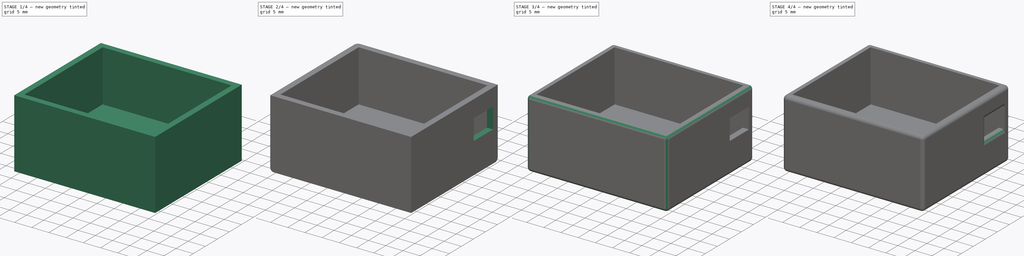
[diagram: build sequence overview — one tinted view per stage of 4, left to right]
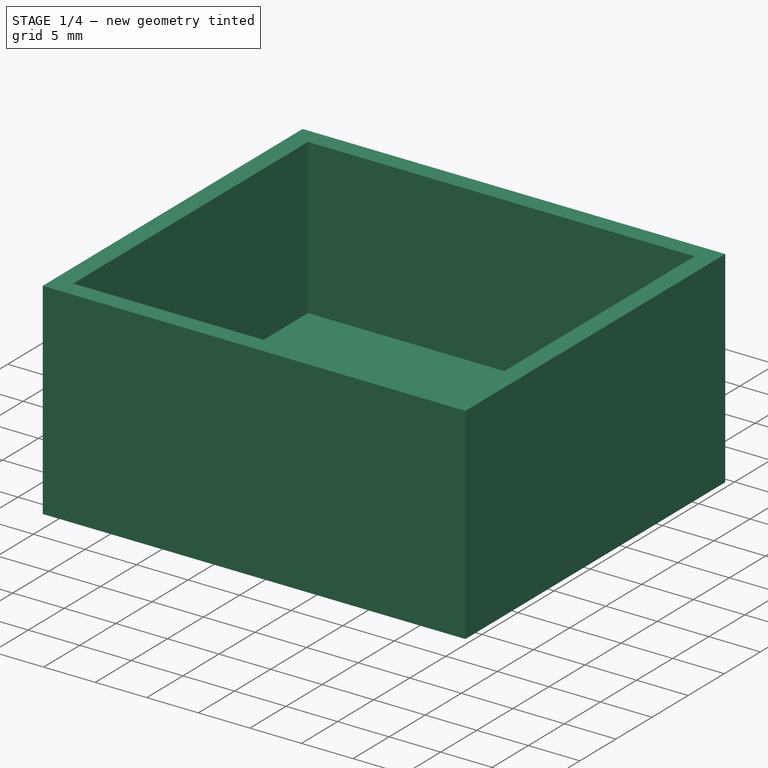
[diagram: stage 1 of 4 — iso view after this stage's code; geometry added in this stage tinted green]
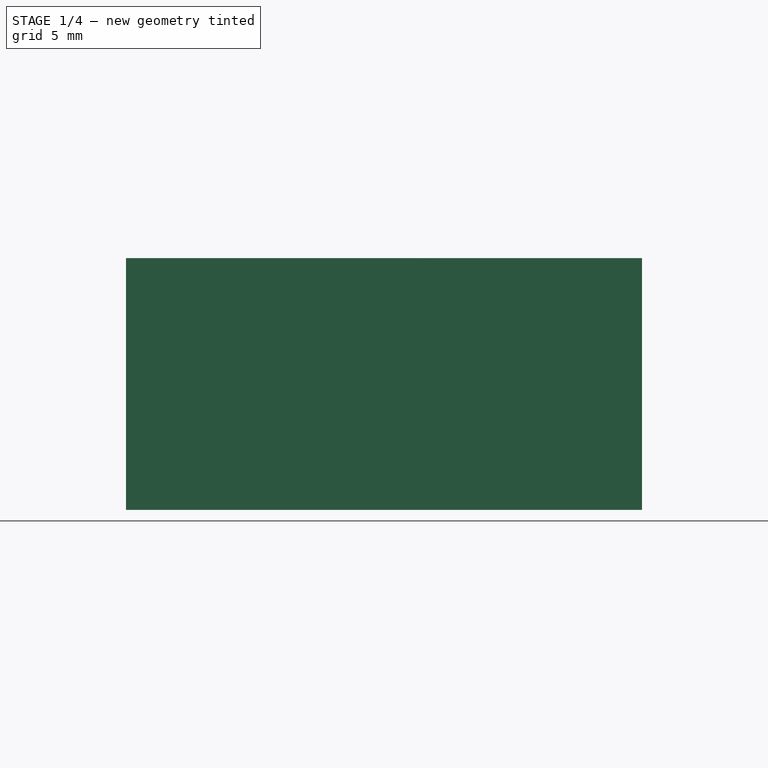
[diagram: stage 1 of 4 — front view after this stage's code; geometry added in this stage tinted green]
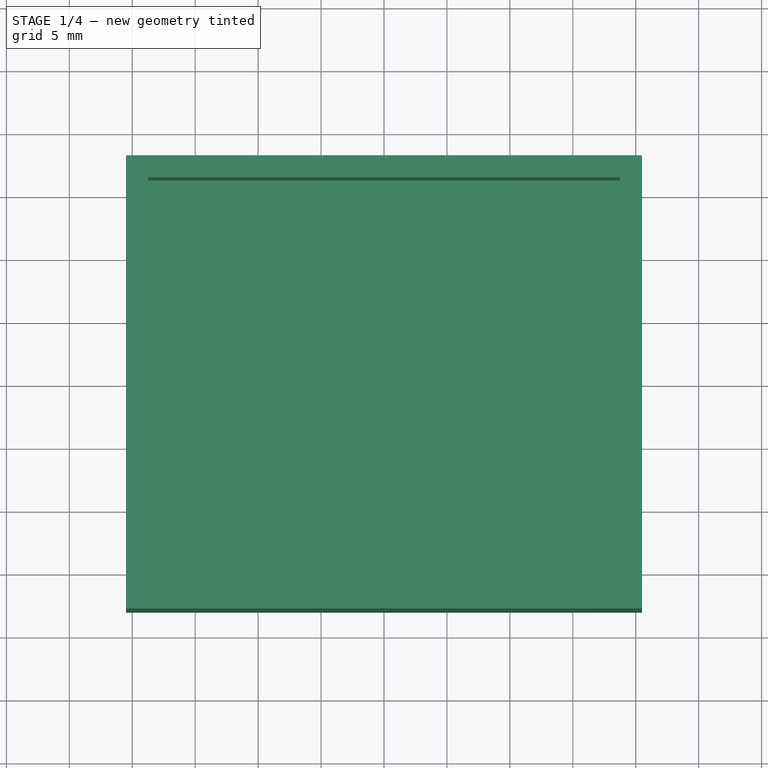
[diagram: stage 1 of 4 — top view after this stage's code; geometry added in this stage tinted green]
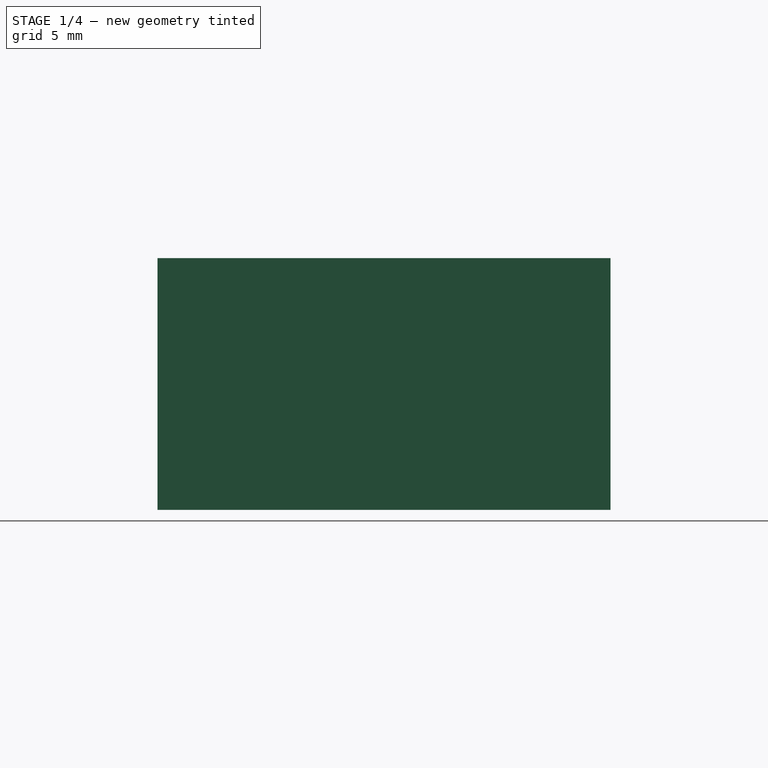
[diagram: stage 1 of 4 — right view after this stage's code; geometry added in this stage tinted green]
FCSTD DOCUMENT  (FreeCAD 0.18R16146 (Git))
Label: SensorCase_2
License: All rights reserved
LicenseURL: http://en.wikipedia.org/wiki/All_rights_reserved
objects: PartDesign::Fillet×8, Sketcher::SketchObject×4, Drawing::FeatureViewPython×4, PartDesign::Pocket×3, PartDesign::Body×2, Drawing::FeatureViewPart×2, PartDesign::Pad×1, Drawing::FeaturePage×1
note: 22 computed .brp shape members not serialized (recipe doc carries the construction recipe); baked Part::Feature solids carry a one-line shape summary decoded from their .brp

FEATURE [PartDesign::Body] Body
  Origin = -> Origin
FEATURE [Sketcher::SketchObject] Sketch
  MapMode = 5
  Support = -> [XY_Plane001]
  sketch-geometry (4):
    g0: LineSegment StartX=-20.5 StartY=18 StartZ=0 EndX=20.5 EndY=18 EndZ=0
    g1: LineSegment StartX=20.5 StartY=18 StartZ=0 EndX=20.5 EndY=-18 EndZ=0
    g2: LineSegment StartX=20.5 StartY=-18 StartZ=0 EndX=-20.5 EndY=-18 EndZ=0
    g3: LineSegment StartX=-20.5 StartY=-18 StartZ=0 EndX=-20.5 EndY=18 EndZ=0
  constraints (12):
    c: Coincident(g0,g1)
    c: Coincident(g1,g2)
    c: Coincident(g2,g3)
    c: Coincident(g3,g0)
    c: Horizontal(g0)
    c: Horizontal(g2)
    c: Vertical(g1)
    c: Vertical(g3)
    c: Distance(g0) = 41
    c: Distance(g1) = 36
    c: Distance(g-1,g0) = 18
    c: Distance(g-1,g1) = 20.5
FEATURE [PartDesign::Pad] Pad
  Length = 20
  Length2 = 100
  Profile = -> Sketch
  Type = 0
FEATURE [Sketcher::SketchObject] Sketch001
  MapMode = 5
  Placement = pos=(0,0,20) rot=(0,0,1;0rad)
  Support = -> [Pad]
  sketch-geometry (4):
    g0: LineSegment StartX=-18.75 StartY=16.25 StartZ=0 EndX=18.75 EndY=16.25 EndZ=0
    g1: LineSegment StartX=18.75 StartY=16.25 StartZ=0 EndX=18.75 EndY=-16.25 EndZ=0
    g2: LineSegment StartX=18.75 StartY=-16.25 StartZ=0 EndX=-18.75 EndY=-16.25 EndZ=0
    g3: LineSegment StartX=-18.75 StartY=-16.25 StartZ=0 EndX=-18.75 EndY=16.25 EndZ=0
  constraints (12):
    c: Coincident(g0,g1)
    c: Coincident(g1,g2)
    c: Coincident(g2,g3)
    c: Coincident(g3,g0)
    c: Horizontal(g0)
    c: Horizontal(g2)
    c: Vertical(g1)
    c: Vertical(g3)
    c: Distance(g0) = 37.5
    c: Distance(g1) = 32.5
    c: Distance(g-1,g0) = 16.25
    c: Distance(g-1,g1) = 18.75
FEATURE [PartDesign::Pocket] Pocket
  BaseFeature = -> Pad
  Length = 15
  Length2 = 100
  Profile = -> Sketch001
  Type = 0
FEATURE [Sketcher::SketchObject] Sketch002
  MapMode = 5
  Placement = pos=(0,0,0) rot=(1,0,0;3.14159rad)
  Support = -> [Pocket]
  sketch-geometry (4):
    g0: LineSegment StartX=-18.75 StartY=16.25 StartZ=0 EndX=18.75 EndY=16.25 EndZ=0
    g1: LineSegment StartX=18.75 StartY=16.25 StartZ=0 EndX=18.75 EndY=-16.25 EndZ=0
    g2: LineSegment StartX=18.75 StartY=-16.25 StartZ=0 EndX=-18.75 EndY=-16.25 EndZ=0
    g3: LineSegment StartX=-18.75 StartY=-16.25 StartZ=0 EndX=-18.75 EndY=16.25 EndZ=0
  constraints (12):
    c: Coincident(g0,g1)
    c: Coincident(g1,g2)
    c: Coincident(g2,g3)
    c: Coincident(g3,g0)
    c: Horizontal(g0)
    c: Horizontal(g2)
    c: Vertical(g1)
    c: Vertical(g3)
    c: Distance(g0) = 37.5
    c: Distance(g3) = 32.5
    c: Distance(g-1,g0) = 16.25
    c: Distance(g-1,g3) = 18.75
FEATURE [PartDesign::Pocket] Pocket001
  BaseFeature = -> Pocket
  Length = 3
  Length2 = 100
  Profile = -> Sketch002
  Type = 0
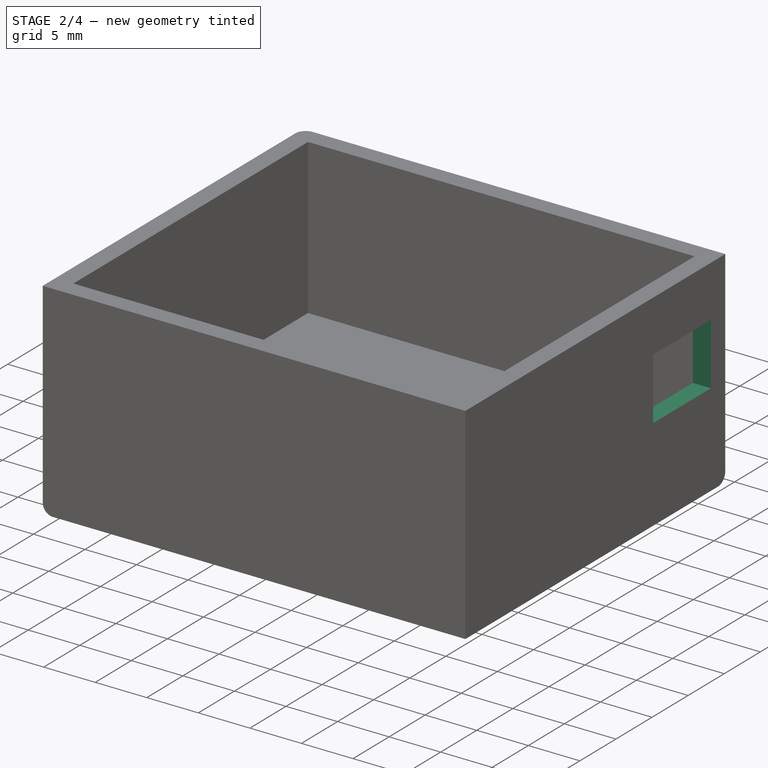
[diagram: stage 2 of 4 — iso view after this stage's code; geometry added in this stage tinted green]
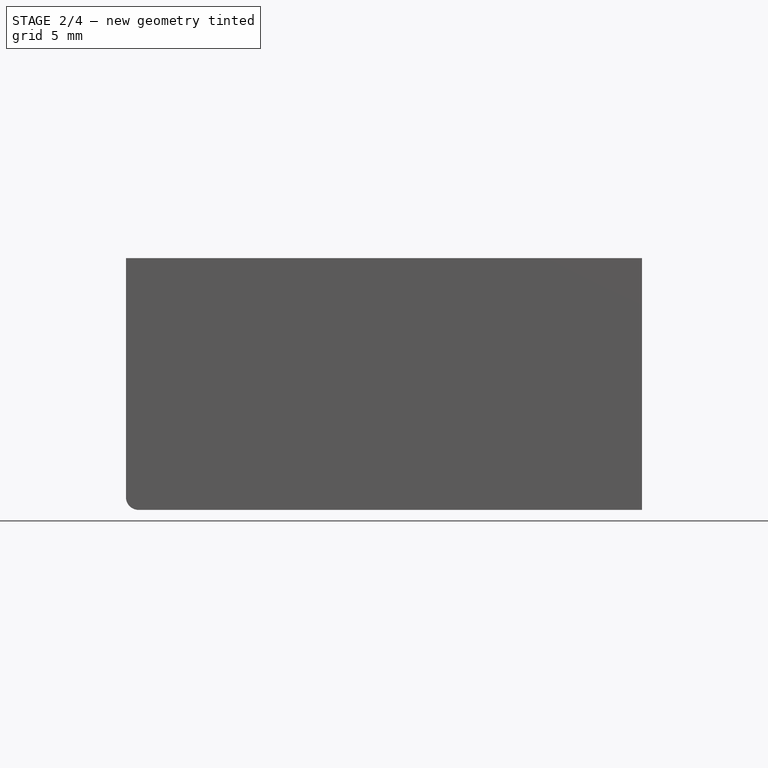
[diagram: stage 2 of 4 — front view after this stage's code; geometry added in this stage tinted green]
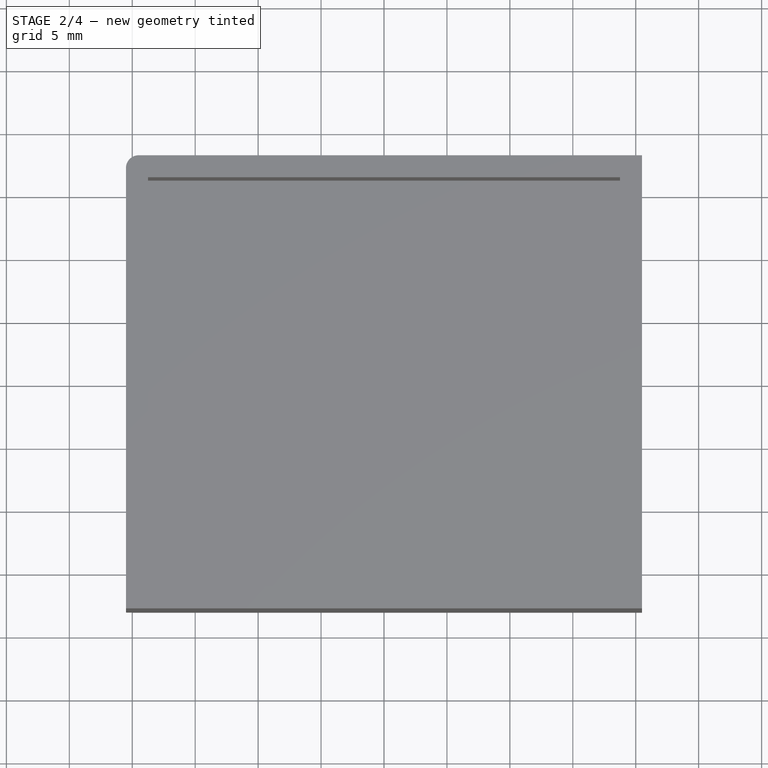
[diagram: stage 2 of 4 — top view after this stage's code; geometry added in this stage tinted green]
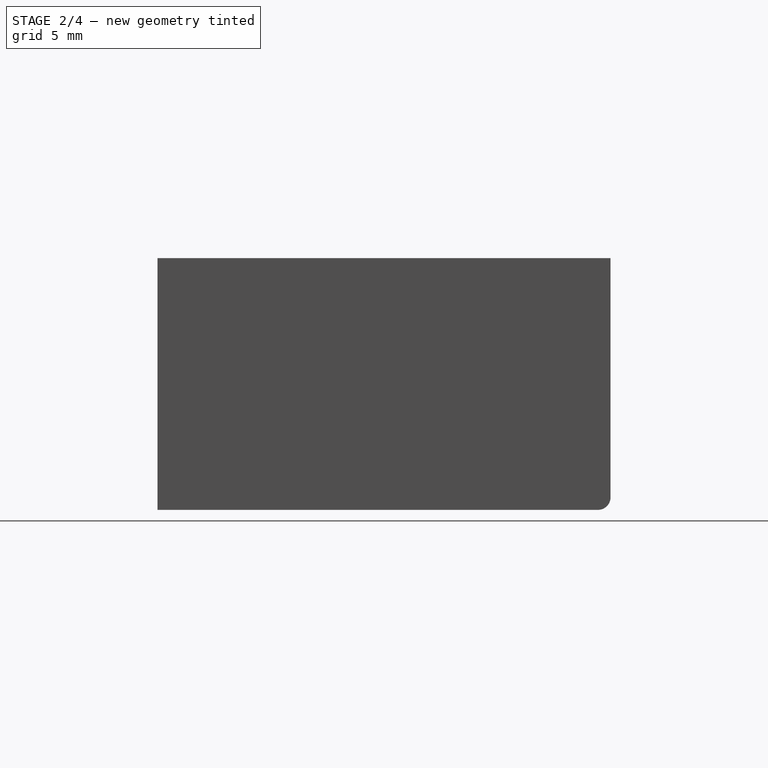
[diagram: stage 2 of 4 — right view after this stage's code; geometry added in this stage tinted green]
FEATURE [Sketcher::SketchObject] Sketch003
  MapMode = 5
  Placement = pos=(20.5,0,0) rot=(0.57735,0.57735,0.57735;2.0944rad)
  Support = -> [Pocket001]
  sketch-geometry (4):
    g0: LineSegment StartX=8 StartY=15 StartZ=0 EndX=16 EndY=15 EndZ=0
    g1: LineSegment StartX=16 StartY=15 StartZ=0 EndX=16 EndY=9 EndZ=0
    g2: LineSegment StartX=16 StartY=9 StartZ=0 EndX=8 EndY=9 EndZ=0
    g3: LineSegment StartX=8 StartY=9 StartZ=0 EndX=8 EndY=15 EndZ=0
  constraints (12):
    c: Coincident(g0,g1)
    c: Coincident(g1,g2)
    c: Coincident(g2,g3)
    c: Coincident(g3,g0)
    c: Horizontal(g0)
    c: Horizontal(g2)
    c: Vertical(g1)
    c: Vertical(g3)
    c: Distance(g0) = 8
    c: Distance(g1) = 6
    c: DistanceY(g-1,g2) = 9
    c: DistanceX(g-1,g2) = 8
FEATURE [PartDesign::Pocket] Pocket002
  BaseFeature = -> Pocket001
  Length = 5
  Length2 = 100
  Profile = -> Sketch003
  Type = 0
FEATURE [PartDesign::Fillet] Fillet
  Base = -> Pocket002 [Edge6]
  BaseFeature = -> Pocket002
  Radius = 1
FEATURE [PartDesign::Fillet] Fillet001
  Base = -> Fillet [Edge4]
  BaseFeature = -> Fillet
  Radius = 1
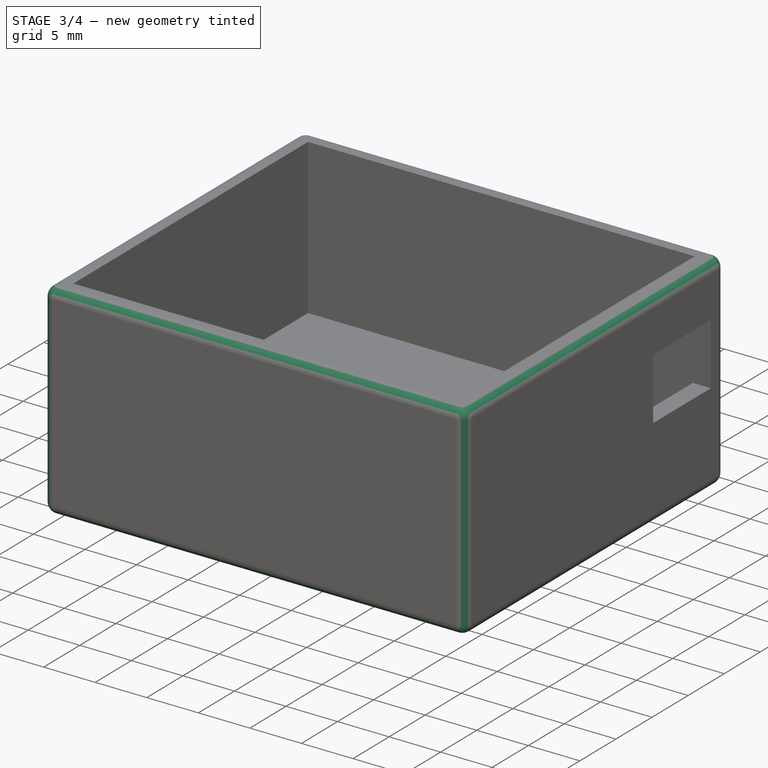
[diagram: stage 3 of 4 — iso view after this stage's code; geometry added in this stage tinted green]
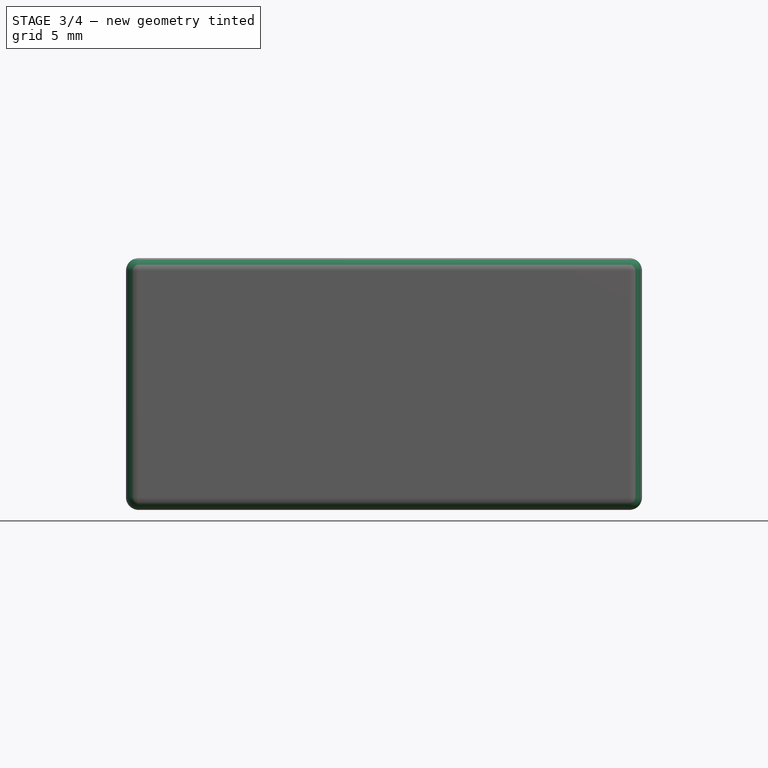
[diagram: stage 3 of 4 — front view after this stage's code; geometry added in this stage tinted green]
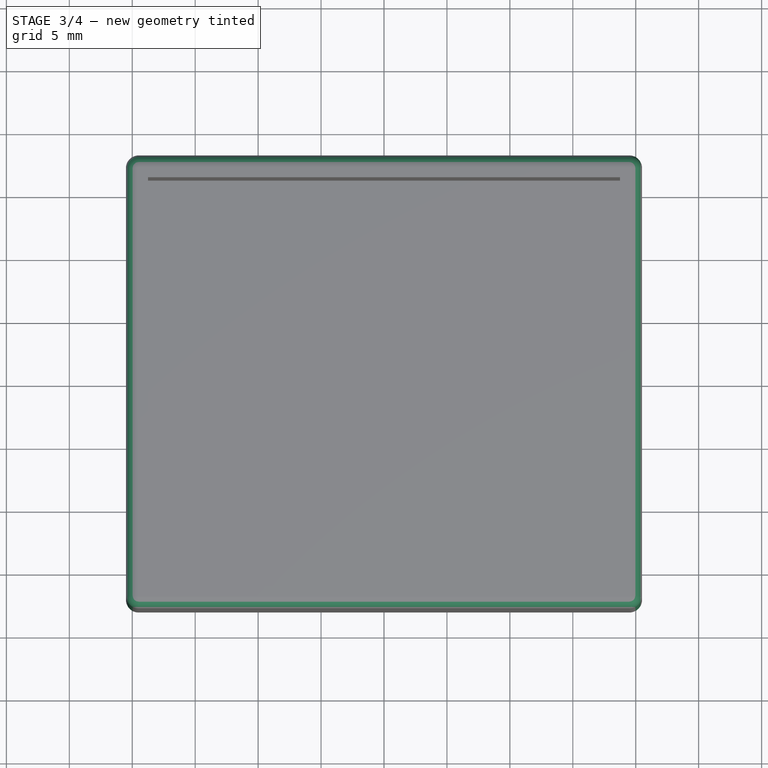
[diagram: stage 3 of 4 — top view after this stage's code; geometry added in this stage tinted green]
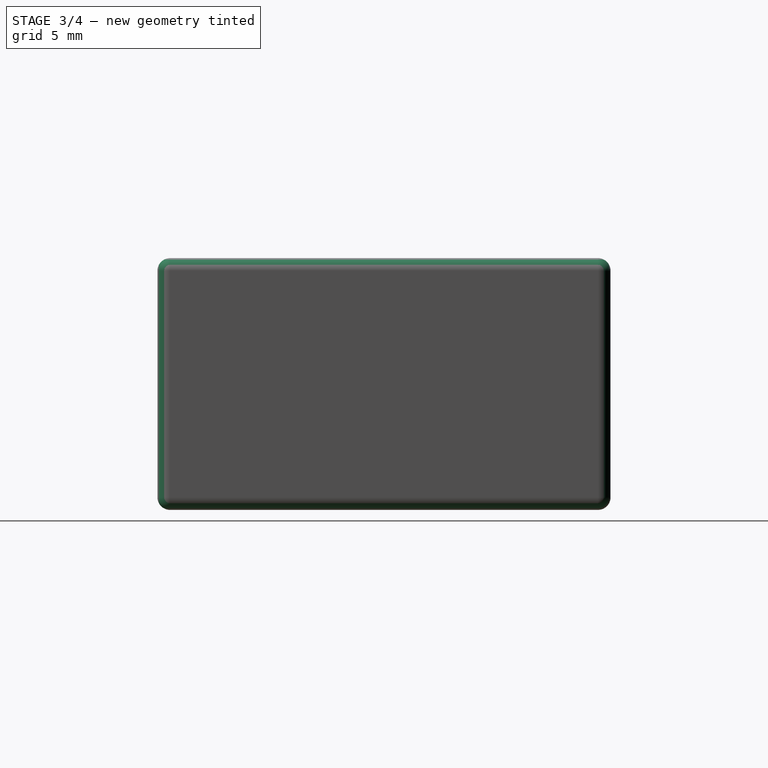
[diagram: stage 3 of 4 — right view after this stage's code; geometry added in this stage tinted green]
FEATURE [PartDesign::Fillet] Fillet002
  Base = -> Fillet001 [Edge16]
  BaseFeature = -> Fillet001
  Radius = 1
FEATURE [PartDesign::Fillet] Fillet003
  Base = -> Fillet002 [Edge29]
  BaseFeature = -> Fillet002
  Radius = 1
FEATURE [PartDesign::Fillet] Fillet004
  Base = -> Fillet003 [Edge8]
  BaseFeature = -> Fillet003
  Radius = 1
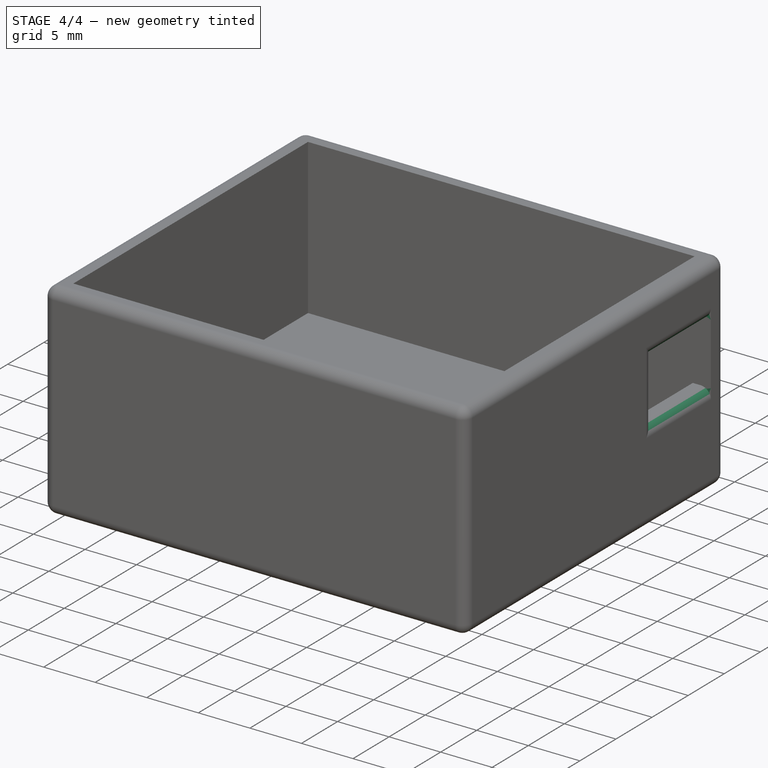
[diagram: stage 4 of 4 — iso view after this stage's code; geometry added in this stage tinted green]
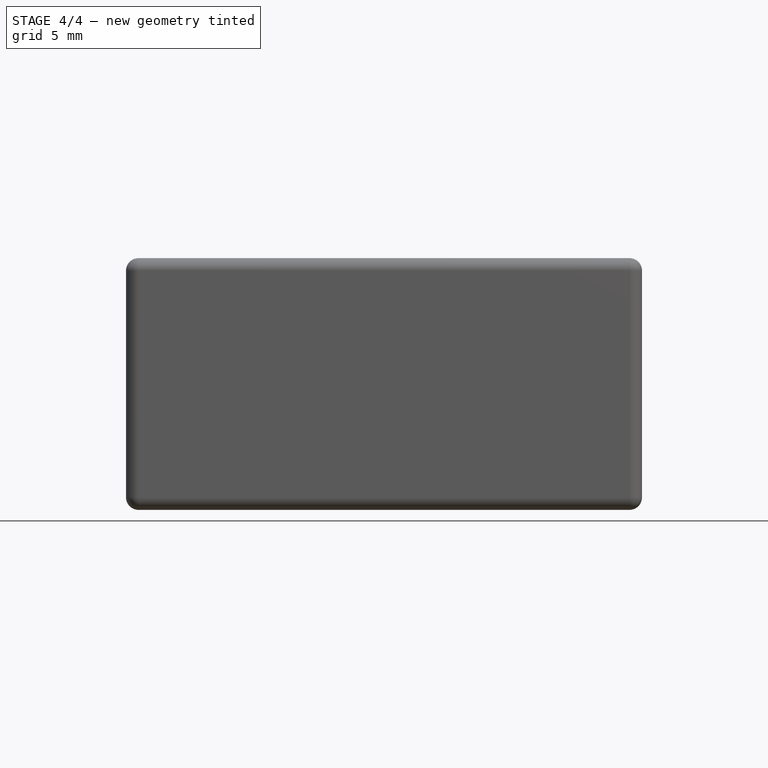
[diagram: stage 4 of 4 — front view after this stage's code; geometry added in this stage tinted green]
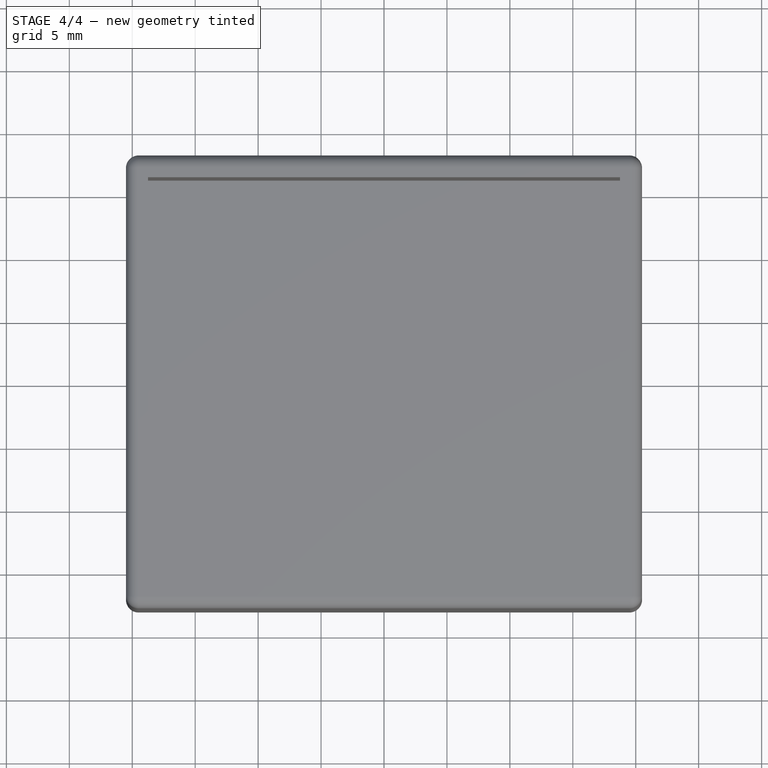
[diagram: stage 4 of 4 — top view after this stage's code; geometry added in this stage tinted green]
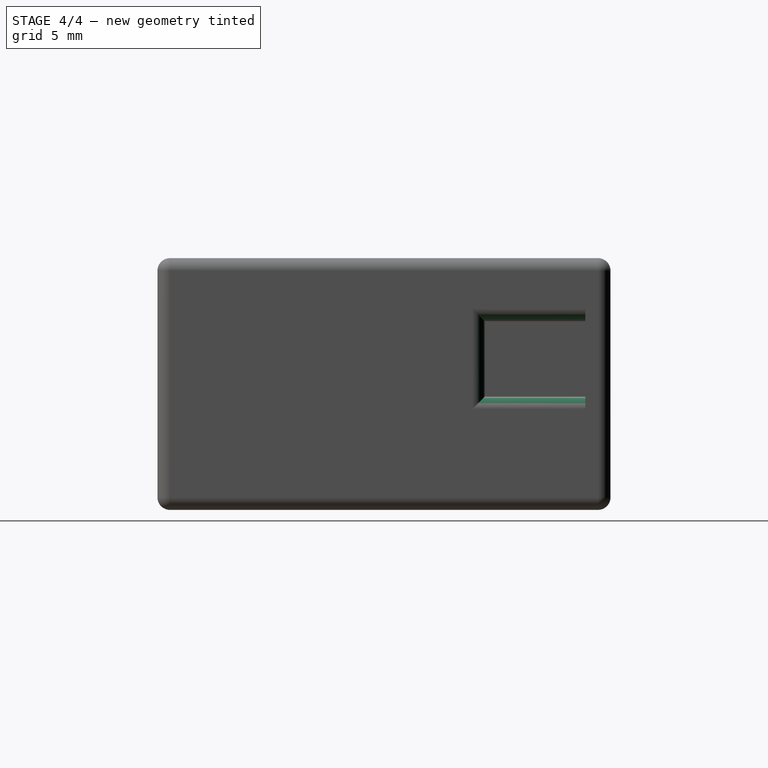
[diagram: stage 4 of 4 — right view after this stage's code; geometry added in this stage tinted green]
FEATURE [PartDesign::Fillet] Fillet005
  Base = -> Fillet004 [Edge54]
  BaseFeature = -> Fillet004
  Radius = 1
FEATURE [PartDesign::Fillet] Fillet006
  Base = -> Fillet005 [Edge6]
  BaseFeature = -> Fillet005
  Radius = 1
FEATURE [PartDesign::Fillet] Fillet007
  Base = -> Fillet006 [Edge8]
  BaseFeature = -> Fillet006
  Radius = 1
FEATURE [PartDesign::Body] Body001
  Group = -> [Sketch,Pad,Sketch001,Pocket,Sketch002,Pocket001,Sketch003,Pocket002,Fillet,Fillet001,Fillet002,Fillet003,Fillet004,Fillet005,Fillet006,Fillet007]
  Origin = -> Origin001
  Tip = -> Fillet007
FEATURE [Drawing::FeatureViewPart] Ortho  label="Ortho_0_0"
  Direction = (1,0,0)
  HiddenWidth = 0.15
  LineWidth = 0.35
  Rotation = -90
  Scale = 4
  ShowHiddenLines = false
  ShowSmoothLines = false
  Source = -> Body001
  Tolerance = 0.05
  ViewResult = <g id="Ortho_0_0"\n   transform="rotate(-90,210,431) translate(210,431) scale(4,4)"\n  >\n<g   fill="none"\n   stroke="rgb(0, 0, 0)"\n   stroke-linecap="butt"\n   stroke-linejoin="miter"\n   stroke-width="0.087500"\n   transform="scale(1,-1)"\n  >\n<path id= "1" d=" M 15 -7 L 16 -7 " />\n<path id= "2" d=" M 8 -8 L 8 -7 " />\n<path id= "3" d=" M 15 -16 L 16 -16 " />\n<path id= "4" d=" M 15 -16 L 9 -16 " />\n<path id= "5" d=" M 9 -16 L 8 -16 " />\n<path d="M16,-7 Q15.8306,-7.16942 15.6697,-7.33028  Q15.5646,-7.43541 15.468,-7.53203  Q15.4222,-7.57776 15.3765,-7.62349  Q15.3347,-7.6653 15.2929,-7.70711  Q15.2555,-7.74447 15.2182,-7.78183  Q15.1857,-7.81428 15.1533,-7.84672  Q15.1262,-7.87385 15.099,-7.90097  Q15.0776,-7.92243 15.0561,-7.94388  Q15.0406,-7.95941 15.0251,-7.97493  Q15.0157,-7.98432 15.0063,-7.99371  Q15.0031,-7.99686 15,-8 " /><path id= "7" d=" M 9 -8 L 15 -8 " />\n<path d="M8,-7 Q8.16942,-7.16942 8.33028,-7.33028  Q8.43541,-7.43541 8.53203,-7.53203  Q8.57776,-7.57776 8.62349,-7.62349  Q8.6653,-7.6653 8.70711,-7.70711  Q8.74447,-7.74447 8.78183,-7.78183  Q8.81428,-7.81428 8.84672,-7.84672  Q8.87385,-7.87385 8.90097,-7.90097  Q8.92243,-7.92243 8.94388,-7.94388  Q8.95941,-7.95941 8.97493,-7.97493  Q8.98432,-7.98432 8.99371,-7.99371  Q8.99686,-7.99686 9,-8 " /><path id= "9" d=" M 15 -8 L 15 -16 " />\n<path id= "10" d=" M 9 -16 L 9 -8 " />\n<path id= "11" d=" M 19 18 L 1 18 " />\n<path id= "12" d=" M 20 -17 L 20 17 " />\n<path id= "13" d=" M -2.2e-16 -17 L -2.2e-16 17 " />\n<path id= "14" d=" M 19 -18 L 1 -18 " />\n<path d="M20 17 A1 1 0 0 1 19 18" /><path d="M-2.22045e-16 17 A1 1 0 0 0 1 18" /><path d="M20 -17 A1 1 0 0 0 19 -18" /><path d="M1 -18 A1 1 0 0 0 -2.22045e-16 -17" /></g>\n</g>
  Visible = true
  X = 210
  Y = 431
FEATURE [Drawing::FeatureViewPart] Ortho001  label="Ortho_0_1"
  Direction = (0,0,1)
  HiddenWidth = 0.15
  LineWidth = 0.35
  Rotation = 90
  Scale = 4
  ShowHiddenLines = false
  ShowSmoothLines = false
  Source = -> Body001
  Tolerance = 0.05
  ViewResult = <g id="Ortho_0_1"\n   transform="rotate(90,210,118.5) translate(210,118.5) scale(4,4)"\n  >\n<g   fill="none"\n   stroke="rgb(0, 0, 0)"\n   stroke-linecap="butt"\n   stroke-linejoin="miter"\n   stroke-width="0.087500"\n   transform="scale(1,-1)"\n  >\n<path id= "1" d=" M 20.5 17 L 20.5 -17 " />\n<path id= "2" d=" M 18.75 16.25 L 18.75 -16.25 " />\n<path d="M20.5 -17 A1 1 0 0 0 19.5 -18" /><path id= "4" d=" M 19.5 -18 L -19.5 -18 " />\n<path d="M19.5 18 A1 1 0 0 0 20.5 17" /><path id= "6" d=" M -18.75 16.25 L 18.75 16.25 " />\n<path id= "7" d=" M 18.75 -16.25 L -18.75 -16.25 " />\n<path id= "8" d=" M -18.75 -16.25 L -18.75 16.25 " />\n<path id= "9" d=" M -19.5 18 L 19.5 18 " />\n<path id= "10" d=" M -20.5 -17 L -20.5 17 " />\n<path d="M-19.5 -18 A1 1 0 0 0 -20.5 -17" /><path d="M-20.5 17 A1 1 0 0 0 -19.5 18" /></g>\n</g>
  Visible = true
  X = 210
  Y = 118.5
FEATURE [Drawing::FeatureViewPython] dim001  # drawing view (typed FeaturePython)
  Rotation = 0
  ViewResult = <g> \n  <line x1="280.000000" y1="36.500000" x2="309.256804" y2="36.500000" style="stroke:rgb(0,0,255);stroke-width:0.30" />\n<line x1="280.000000" y1="200.500000" x2="309.256804" y2="200.500000" style="stroke:rgb(0,0,255);stroke-width:0.30" />\n<line x1="308.256804" y1="36.500000" x2="308.256804" y2="200.500000" style="stroke:rgb(0,0,255);stroke-width:0.30" /> \n  <polygon points="308.256804,200.500000 309.256804,197.500000 308.256804,196.500000 307.256804,197.500000" style="fill:rgb(0,0,255);stroke:rgb(0,0,255);stroke-width:0" /><polygon points="308.256804,36.500000 307.256804,39.500000 308.256804,40.500000 309.256804,39.500000" style="fill:rgb(0,0,255);stroke:rgb(0,0,255);stroke-width:0" /> \n  <text x="306.256804" y="118.500000" font-family="Verdana" font-size="3.6" fill="rgb(255,0,0)" text-anchor="middle" transform="rotate(-90.000000 306.256804,118.500000)" >41</text> </g>
  Visible = true
  X = 0
  Y = 0
  arrowL1 = 3
  arrowL2 = 1
  arrowW = 2
  arrow_scheme = 0
  autoPlaceOffset = 2
  autoPlaceText = true
  click1_x = 308.257
  click1_y = 196.066
  click2_x = 308.257
  click2_y = 196.066
  comma_decimal_place = false
  dimension_line_overshoot = 1
  gap_datum_points = 2
  halfDimension_linear = false
  lineColor = rgb(0,0,255)
  strokeWidth = 0.3
  textFormat_linear = %(value)3.3f
  textRenderer_color = rgb(255,0,0)
  textRenderer_family = Verdana
  textRenderer_size = 3.6
  unit_custom_scale = 0.9
  unit_scheme = 0
FEATURE [Drawing::FeatureViewPython] dim002  # drawing view (typed FeaturePython)
  Rotation = 0
  ViewResult = <g> \n  <line x1="145.000000" y1="41.500000" x2="145.000000" y2="22.506585" style="stroke:rgb(0,0,255);stroke-width:0.30" />\n<line x1="275.000000" y1="41.500000" x2="275.000000" y2="22.506585" style="stroke:rgb(0,0,255);stroke-width:0.30" />\n<line x1="145.000000" y1="23.506585" x2="275.000000" y2="23.506585" style="stroke:rgb(0,0,255);stroke-width:0.30" /> \n  <polygon points="275.000000,23.506585 272.000000,22.506585 271.000000,23.506585 272.000000,24.506585" style="fill:rgb(0,0,255);stroke:rgb(0,0,255);stroke-width:0" /><polygon points="145.000000,23.506585 148.000000,24.506585 149.000000,23.506585 148.000000,22.506585" style="fill:rgb(0,0,255);stroke:rgb(0,0,255);stroke-width:0" /> \n  <text x="210.000000" y="21.506585" font-family="Verdana" font-size="3.6" fill="rgb(255,0,0)" text-anchor="middle" transform="rotate(0.000000 210.000000,21.506585)" >32.5</text> </g>
  Visible = true
  X = 0
  Y = 0
  arrowL1 = 3
  arrowL2 = 1
  arrowW = 2
  arrow_scheme = 0
  autoPlaceOffset = 2
  autoPlaceText = true
  click1_x = 265.518
  click1_y = 23.5066
  click2_x = 265.518
  click2_y = 23.5066
  comma_decimal_place = false
  dimension_line_overshoot = 1
  gap_datum_points = 2
  halfDimension_linear = false
  lineColor = rgb(0,0,255)
  strokeWidth = 0.3
  textFormat_linear = %(value)3.3f
  textRenderer_color = rgb(255,0,0)
  textRenderer_family = Verdana
  textRenderer_size = 3.6
  unit_custom_scale = 0.9
  unit_scheme = 0
FEATURE [Drawing::FeatureViewPython] dim003  # drawing view (typed FeaturePython)
  Rotation = 0
  ViewResult = <g> \n  <line x1="138.000000" y1="198.500000" x2="138.000000" y2="218.035228" style="stroke:rgb(0,0,255);stroke-width:0.30" />\n<line x1="282.000000" y1="198.500000" x2="282.000000" y2="218.035228" style="stroke:rgb(0,0,255);stroke-width:0.30" />\n<line x1="138.000000" y1="217.035228" x2="282.000000" y2="217.035228" style="stroke:rgb(0,0,255);stroke-width:0.30" /> \n  <polygon points="282.000000,217.035228 279.000000,216.035228 278.000000,217.035228 279.000000,218.035228" style="fill:rgb(0,0,255);stroke:rgb(0,0,255);stroke-width:0" /><polygon points="138.000000,217.035228 141.000000,218.035228 142.000000,217.035228 141.000000,216.035228" style="fill:rgb(0,0,255);stroke:rgb(0,0,255);stroke-width:0" /> \n  <text x="210.000000" y="215.035228" font-family="Verdana" font-size="3.6" fill="rgb(255,0,0)" text-anchor="middle" transform="rotate(0.000000 210.000000,215.035228)" >36</text> </g>
  Visible = true
  X = 0
  Y = 0
  arrowL1 = 3
  arrowL2 = 1
  arrowW = 2
  arrow_scheme = 0
  autoPlaceOffset = 2
  autoPlaceText = true
  click1_x = 244.551
  click1_y = 217.035
  click2_x = 244.551
  click2_y = 217.035
  comma_decimal_place = false
  dimension_line_overshoot = 1
  gap_datum_points = 2
  halfDimension_linear = false
  lineColor = rgb(0,0,255)
  strokeWidth = 0.3
  textFormat_linear = %(value)3.3f
  textRenderer_color = rgb(255,0,0)
  textRenderer_family = Verdana
  textRenderer_size = 3.6
  unit_custom_scale = 0.9
  unit_scheme = 0
FEATURE [Drawing::FeatureViewPython] dim004  # drawing view (typed FeaturePython)
  Rotation = 0
  ViewResult = <g> \n  <line x1="143.000000" y1="43.500000" x2="115.558550" y2="43.500000" style="stroke:rgb(0,0,255);stroke-width:0.30" />\n<line x1="143.000000" y1="193.500000" x2="115.558550" y2="193.500000" style="stroke:rgb(0,0,255);stroke-width:0.30" />\n<line x1="116.558550" y1="43.500000" x2="116.558550" y2="193.500000" style="stroke:rgb(0,0,255);stroke-width:0.30" /> \n  <polygon points="116.558550,193.500000 117.558550,190.500000 116.558550,189.500000 115.558550,190.500000" style="fill:rgb(0,0,255);stroke:rgb(0,0,255);stroke-width:0" /><polygon points="116.558550,43.500000 115.558550,46.500000 116.558550,47.500000 117.558550,46.500000" style="fill:rgb(0,0,255);stroke:rgb(0,0,255);stroke-width:0" /> \n  <text x="114.558550" y="118.500000" font-family="Verdana" font-size="3.6" fill="rgb(255,0,0)" text-anchor="middle" transform="rotate(-90.000000 114.558550,118.500000)" >37.5</text> </g>
  Visible = true
  X = 0
  Y = 0
  arrowL1 = 3
  arrowL2 = 1
  arrowW = 2
  arrow_scheme = 0
  autoPlaceOffset = 2
  autoPlaceText = true
  click1_x = 116.559
  click1_y = 189.225
  click2_x = 116.559
  click2_y = 189.225
  comma_decimal_place = false
  dimension_line_overshoot = 1
  gap_datum_points = 2
  halfDimension_linear = false
  lineColor = rgb(0,0,255)
  strokeWidth = 0.3
  textFormat_linear = %(value)3.3f
  textRenderer_color = rgb(255,0,0)
  textRenderer_family = Verdana
  textRenderer_size = 3.6
  unit_custom_scale = 0.9
  unit_scheme = 0
FEATURE [Drawing::FeaturePage] Page
  EditableTexts = AUTHOR NAME | CREATION DATE | SUPERVISOR NAME | CHECK DATE | SCALE | WEIGHT | NUMBER | SHEET | TITLE | SUBTITLE
  Group = -> [Ortho,Ortho001,dim001,dim002,dim003,dim004]
  Template = <path>
note: 1 file-system path scrubbed to <path> (originals preserved in the JSON sidecar)
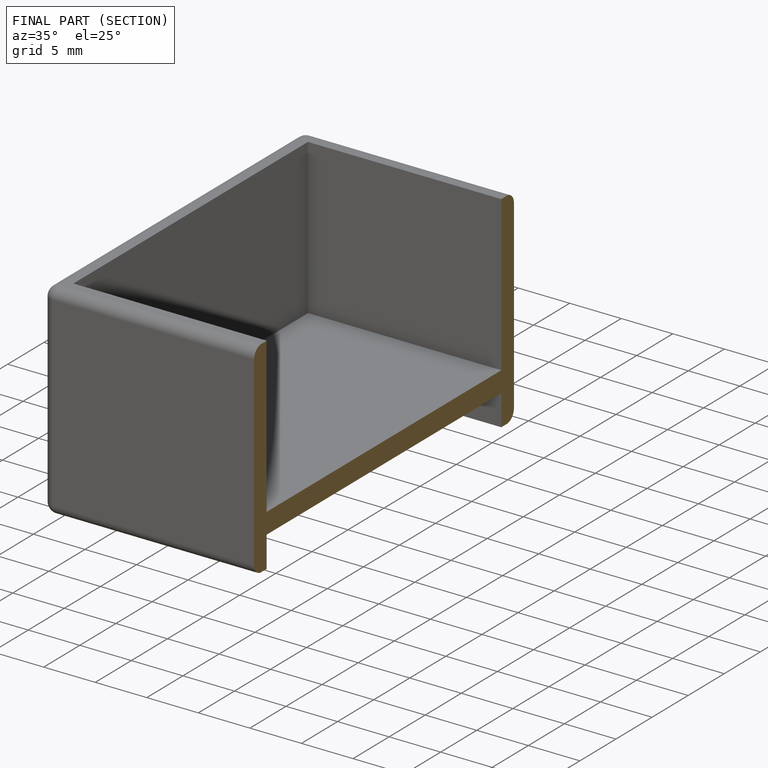
[diagram: finished part — half-section view (interior)]
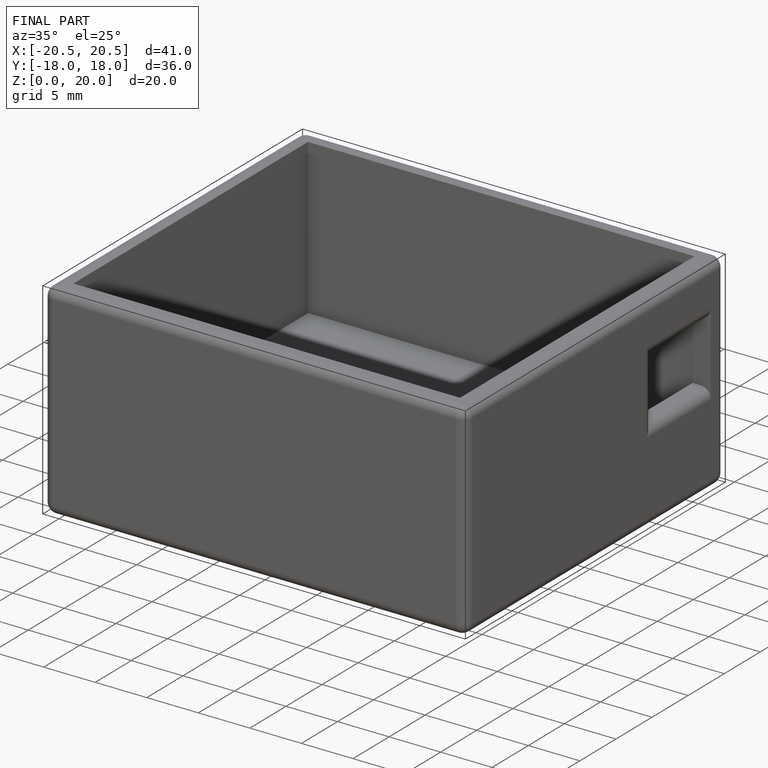
[diagram: finished part — iso view with bounding-box wireframe]
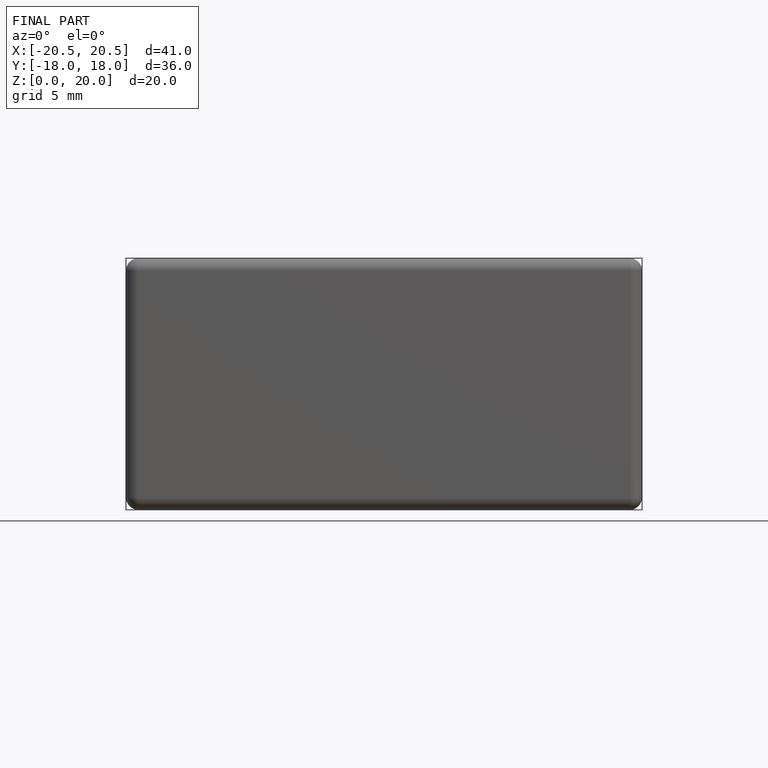
[diagram: finished part — front view with bounding-box wireframe]
